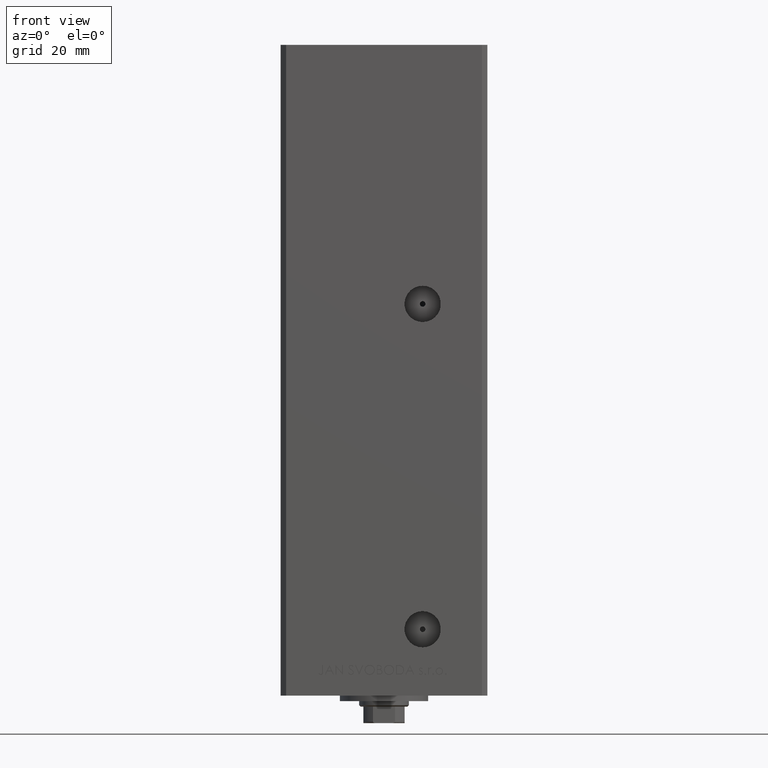
[diagram: clean part render]
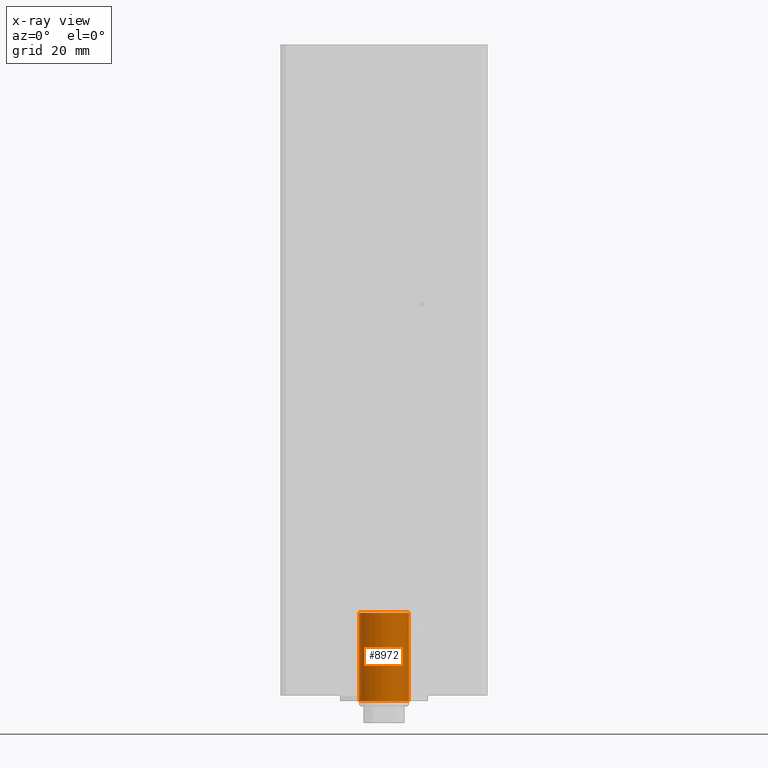
[diagram: x-ray — body ghosted, one internal face saturated and labeled with its STEP entity id]
A machine part, front view, then the same camera in x-ray: the body is ghosted and one INTERNAL B-rep face — a face not visible from any outside direction — is saturated and labeled: STEP entity #8972.
In plain terms, the highlighted cylindrical surface (edge-blend (fillet) strip) has radius 9 mm, axis along (0, 0, -1).
Its self-contained STEP definition (entity closure, byte-faithful):
#66 = VERTEX_POINT ( 'NONE', #6559 ) ;
#110 = DIRECTION ( 'NONE',  ( 1.000000000000000000, 0.000000000000000000, 0.000000000000000000 ) ) ;
#344 = VECTOR ( 'NONE', #13911, 1000.000000000000000 ) ;
#2000 = CIRCLE ( 'NONE', #3592, 8.999999999999996447 ) ;
#2050 = DIRECTION ( 'NONE',  ( 0.000000000000000000, 0.000000000000000000, 1.000000000000000000 ) ) ;
#2093 = VERTEX_POINT ( 'NONE', #8150 ) ;
#2567 = DIRECTION ( 'NONE',  ( -0.000000000000000000, -0.000000000000000000, 1.000000000000000000 ) ) ;
#3426 = AXIS2_PLACEMENT_3D ( 'NONE', #28466, #2050, #9103 ) ;
#3592 = AXIS2_PLACEMENT_3D ( 'NONE', #3873, #15915, #110 ) ;
#3873 = CARTESIAN_POINT ( 'NONE',  ( 0.000000000000000000, -6.938893903907228378E-15, -30.00000000000000000 ) ) ;
#5847 = LINE ( 'NONE', #32748, #41593 ) ;
#6559 = CARTESIAN_POINT ( 'NONE',  ( 9.000000000000000000, -6.938893903907228378E-15, 2.000000000000000000 ) ) ;
#8150 = CARTESIAN_POINT ( 'NONE',  ( -9.000000000000000000, -5.836711784674610467E-15, 2.000000000000000000 ) ) ;
#8972 = ADVANCED_FACE ( 'NONE', ( #14990 ), #44425, .F. ) ;
#9103 = DIRECTION ( 'NONE',  ( 1.000000000000000000, 0.000000000000000000, 0.000000000000000000 ) ) ;
#9179 = CARTESIAN_POINT ( 'NONE',  ( 8.999999999999996447, -6.938893903907228378E-15, -30.00000000000000000 ) ) ;
#11346 = CARTESIAN_POINT ( 'NONE',  ( 9.000000000000000000, -6.938893903907228378E-15, 0.000000000000000000 ) ) ;
#13671 = LINE ( 'NONE', #11346, #344 ) ;
#13911 = DIRECTION ( 'NONE',  ( -0.000000000000000000, -0.000000000000000000, 1.000000000000000000 ) ) ;
#14990 = FACE_OUTER_BOUND ( 'NONE', #30045, .T. ) ;
#15915 = DIRECTION ( 'NONE',  ( 0.000000000000000000, 0.000000000000000000, 1.000000000000000000 ) ) ;
#16674 = EDGE_CURVE ( 'NONE', #2093, #66, #17859, .T. ) ;
#17859 = CIRCLE ( 'NONE', #3426, 9.000000000000000000 ) ;
#20373 = CARTESIAN_POINT ( 'NONE',  ( -8.999999999999996447, -5.836711784674610467E-15, -30.00000000000000000 ) ) ;
#22608 = EDGE_CURVE ( 'NONE', #24078, #66, #13671, .T. ) ;
#24078 = VERTEX_POINT ( 'NONE', #9179 ) ;
#28215 = ORIENTED_EDGE ( 'NONE', *, *, #16674, .T. ) ;
#28466 = CARTESIAN_POINT ( 'NONE',  ( 0.000000000000000000, -6.938893903907228378E-15, 2.000000000000000000 ) ) ;
#29211 = EDGE_CURVE ( 'NONE', #33568, #24078, #2000, .T. ) ;
#30045 = EDGE_LOOP ( 'NONE', ( #48762, #34133, #28215, #30909 ) ) ;
#30909 = ORIENTED_EDGE ( 'NONE', *, *, #22608, .F. ) ;
#32054 = AXIS2_PLACEMENT_3D ( 'NONE', #49177, #33117, #44928 ) ;
#32748 = CARTESIAN_POINT ( 'NONE',  ( -9.000000000000000000, -5.836711784674610467E-15, 0.000000000000000000 ) ) ;
#33117 = DIRECTION ( 'NONE',  ( -0.000000000000000000, -0.000000000000000000, 1.000000000000000000 ) ) ;
#33568 = VERTEX_POINT ( 'NONE', #20373 ) ;
#34133 = ORIENTED_EDGE ( 'NONE', *, *, #36870, .T. ) ;
#36870 = EDGE_CURVE ( 'NONE', #33568, #2093, #5847, .T. ) ;
#41593 = VECTOR ( 'NONE', #2567, 1000.000000000000000 ) ;
#44425 = CYLINDRICAL_SURFACE ( 'NONE', #32054, 9.000000000000000000 ) ;
#44928 = DIRECTION ( 'NONE',  ( 1.000000000000000000, 0.000000000000000000, 0.000000000000000000 ) ) ;
#48762 = ORIENTED_EDGE ( 'NONE', *, *, #29211, .F. ) ;
#49177 = CARTESIAN_POINT ( 'NONE',  ( 0.000000000000000000, -6.938893903907228378E-15, 0.000000000000000000 ) ) ;